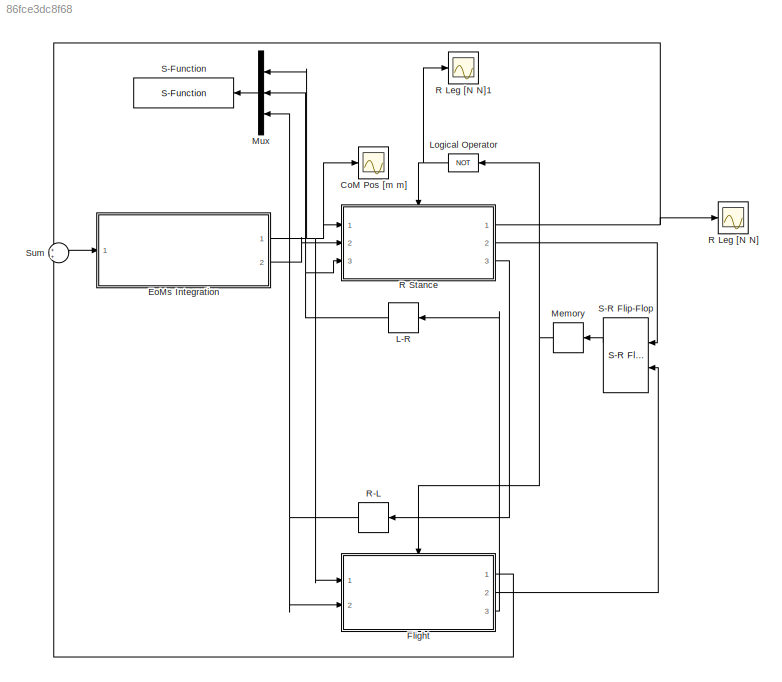
MODEL slx_86fce3dc8f68
KIND model
CONFIG AbsTol = auto
CONFIG FixedStep = auto
CONFIG InitFcn = SLIPrun_params
CONFIG MaxStep = 0.01
CONFIG MinStep = auto
CONFIG RelTol = 1e-3
CONFIG SampleTimeConstraint = Unconstrained
CONFIG Solver = ode45
CONFIG SolverMode = Auto
CONFIG SolverName = ode45
CONFIG StartTime = 0.0
CONFIG StopTime = 5
BLOCK [Scope] CoM Pos [m m]
  Floating = off
  NumInputPorts = 1
  Ports = [1]
  YMax = 1
  YMin = 0
  ZoomMode = yonly
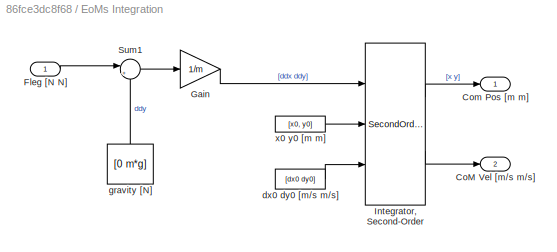
BLOCK [SubSystem] EoMs Integration
  Ports = [1, 2]
  RequestExecContextInheritance = off
BLOCK [Outport] EoMs Integration/CoM Vel [m//s m//s]
  IconDisplay = Port number
  Port = 2
BLOCK [Outport] EoMs Integration/Com Pos [m m]
  IconDisplay = Port number
BLOCK [Inport] EoMs Integration/Fleg [N N]
  IconDisplay = Port number
BLOCK [Gain] EoMs Integration/Gain
  Gain = 1/m
  OutDataTypeStr = Inherit: Inherit via internal rule
  ParamDataTypeStr = Inherit: Inherit via internal rule
  SaturateOnIntegerOverflow = off
BLOCK [SecondOrderIntegrator] EoMs Integration/Integrator, Second-Order
  ICSourceDXDT = external
  ICSourceX = external
  Ports = [3, 2]
BLOCK [Sum] EoMs Integration/Sum1
  IconShape = round
  InputSameDT = off
  Inputs = |+-
  OutDataTypeStr = Inherit: Inherit via internal rule
  Ports = [2, 1]
  SaturateOnIntegerOverflow = off
BLOCK [Constant] EoMs Integration/dx0 dy0 [m//s m//s]
  Value = [dx0 dy0]
BLOCK [Constant] EoMs Integration/gravity [N]
  Value = [0 m*g]
BLOCK [Constant] EoMs Integration/x0 y0 [m m]
  Value = [x0, y0]
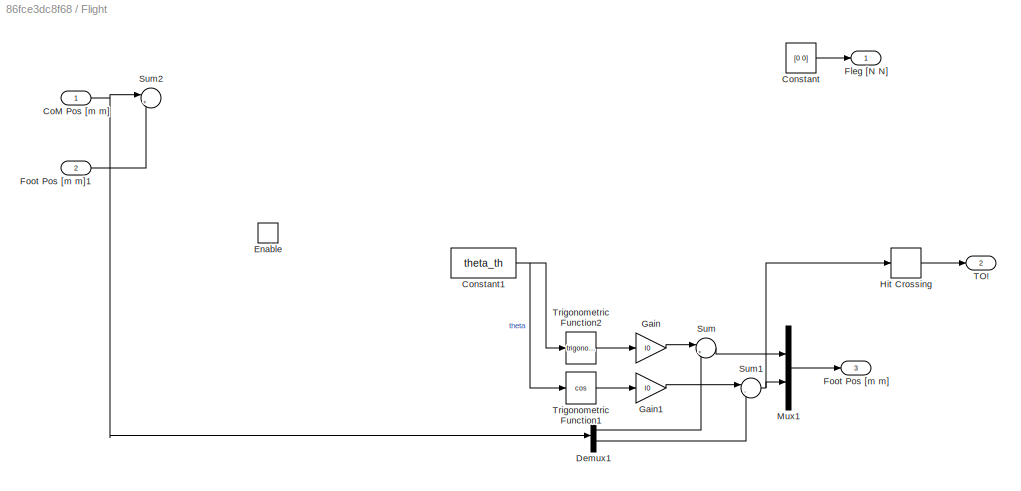
BLOCK [SubSystem] Flight
  Ports = [2, 3, 1]
  RequestExecContextInheritance = off
BLOCK [Inport] Flight/CoM Pos [m m]
  IconDisplay = Port number
BLOCK [Constant] Flight/Constant
  Value = [0 0]
BLOCK [Constant] Flight/Constant1
  Value = theta_th
BLOCK [Demux] Flight/Demux1
  DisplayOption = bar
  Outputs = 2
  Ports = [1, 2]
BLOCK [EnablePort] Flight/Enable
  Ports = []
  StatesWhenEnabling = reset
BLOCK [Outport] Flight/Fleg [N N]
  IconDisplay = Port number
  InitialOutput = [0 0]
  OutputWhenDisabled = reset
BLOCK [Outport] Flight/Foot Pos [m m]
  IconDisplay = Port number
  Port = 3
BLOCK [Inport] Flight/Foot Pos [m m]1
  IconDisplay = Port number
  Port = 2
BLOCK [Gain] Flight/Gain
  Gain = l0
  OutDataTypeStr = Inherit: Inherit via internal rule
  ParamDataTypeStr = Inherit: Inherit via internal rule
  SaturateOnIntegerOverflow = off
BLOCK [Gain] Flight/Gain1
  Gain = l0
  OutDataTypeStr = Inherit: Inherit via internal rule
  ParamDataTypeStr = Inherit: Inherit via internal rule
  SaturateOnIntegerOverflow = off
BLOCK [HitCross] Flight/Hit Crossing
  HitCrossingDirection = falling
  Ports = [1, 1]
BLOCK [Mux] Flight/Mux1
  DisplayOption = bar
  Inputs = 2
  Ports = [2, 1]
BLOCK [Sum] Flight/Sum
  IconShape = round
  InputSameDT = off
  Inputs = |++
  OutDataTypeStr = Inherit: Inherit via internal rule
  Ports = [2, 1]
  SaturateOnIntegerOverflow = off
BLOCK [Sum] Flight/Sum1
  IconShape = round
  InputSameDT = off
  Inputs = |-+
  OutDataTypeStr = Inherit: Inherit via internal rule
  Ports = [2, 1]
  SaturateOnIntegerOverflow = off
BLOCK [Sum] Flight/Sum2
  IconShape = round
  InputSameDT = off
  Inputs = |+-
  OutDataTypeStr = Inherit: Inherit via internal rule
  Ports = [2, 1]
  SaturateOnIntegerOverflow = off
BLOCK [Outport] Flight/TO!
  IconDisplay = Port number
  InitialOutput = [0]
  OutputWhenDisabled = reset
  Port = 2
BLOCK [Trigonometry] Flight/Trigonometric Function1
  Operator = cos
  Ports = [1, 1]
BLOCK [Trigonometry] Flight/Trigonometric Function2
  Ports = [1, 1]
BLOCK [Memory] L-R
BLOCK [Logic] Logical Operator
  AllPortsSameDT = off
  Operator = NOT
  OutDataTypeStr = boolean
  Ports = [1, 1]
BLOCK [Memory] Memory
BLOCK [Mux] Mux
  DisplayOption = bar
  Inputs = 3
  Ports = [3, 1]
BLOCK [Scope] R Leg [N N]
  Floating = off
  NumInputPorts = 1
  Ports = [1]
  SaveName = ScopeData2
  YMax = 2750
  YMin = -500
  ZoomMode = yonly
BLOCK [Scope] R Leg [N N]1
  Floating = off
  NumInputPorts = 1
  Ports = [1]
  SaveName = ScopeData3
  ZoomMode = yonly
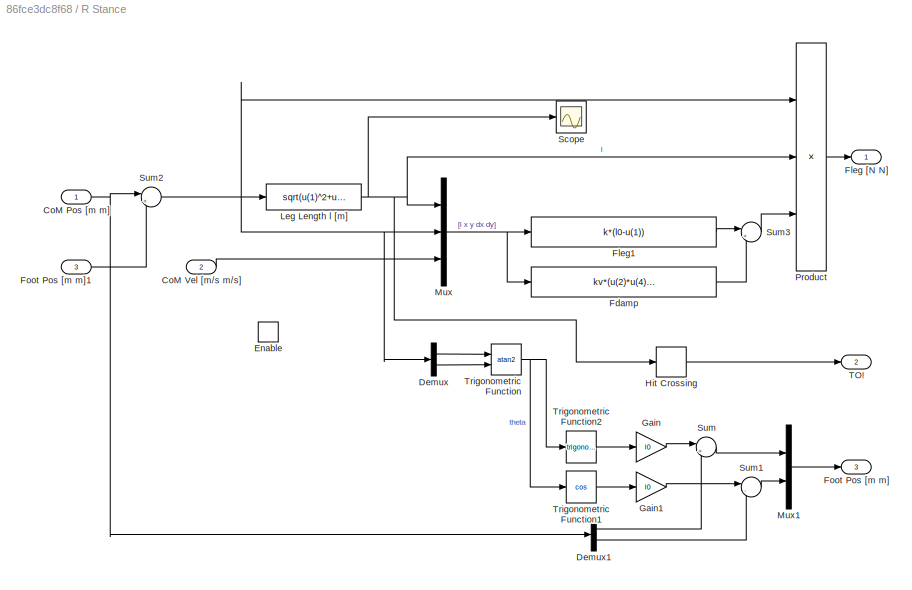
BLOCK [SubSystem] R Stance
  Ports = [3, 3, 1]
  RequestExecContextInheritance = off
BLOCK [Inport] R Stance/CoM Pos [m m]
  IconDisplay = Port number
BLOCK [Inport] R Stance/CoM Vel [m//s m//s]
  IconDisplay = Port number
  Port = 2
BLOCK [Demux] R Stance/Demux
  DisplayOption = bar
  Outputs = 2
  Ports = [1, 2]
BLOCK [Demux] R Stance/Demux1
  DisplayOption = bar
  Outputs = 2
  Ports = [1, 2]
BLOCK [EnablePort] R Stance/Enable
  Ports = []
  StatesWhenEnabling = reset
BLOCK [Fcn] R Stance/Fdamp
  Expr = kv*(u(2)*u(4)+u(3)*u(5))/u(1)
BLOCK [Outport] R Stance/Fleg [N N]
  IconDisplay = Port number
  InitialOutput = [0 0]
  OutputWhenDisabled = reset
BLOCK [Fcn] R Stance/Fleg1
  Expr = k*(l0-u(1))
BLOCK [Outport] R Stance/Foot Pos [m m]
  IconDisplay = Port number
  Port = 3
BLOCK [Inport] R Stance/Foot Pos [m m]1
  IconDisplay = Port number
  Port = 3
BLOCK [Gain] R Stance/Gain
  Gain = l0
  OutDataTypeStr = Inherit: Inherit via internal rule
  ParamDataTypeStr = Inherit: Inherit via internal rule
  SaturateOnIntegerOverflow = off
BLOCK [Gain] R Stance/Gain1
  Gain = l0
  OutDataTypeStr = Inherit: Inherit via internal rule
  ParamDataTypeStr = Inherit: Inherit via internal rule
  SaturateOnIntegerOverflow = off
BLOCK [HitCross] R Stance/Hit Crossing
  HitCrossingDirection = rising
  HitCrossingOffset = l0
  Ports = [1, 1]
BLOCK [Fcn] R Stance/Leg Length l [m]
  Expr = sqrt(u(1)^2+u(2)^2)
BLOCK [Mux] R Stance/Mux
  DisplayOption = bar
  Inputs = 3
  Ports = [3, 1]
BLOCK [Mux] R Stance/Mux1
  DisplayOption = bar
  Inputs = 2
  Ports = [2, 1]
BLOCK [Product] R Stance/Product
  InputSameDT = off
  Inputs = */*
  OutDataTypeStr = Inherit: Inherit via internal rule
  Ports = [3, 1]
  RndMeth = Floor
  SaturateOnIntegerOverflow = off
BLOCK [Scope] R Stance/Scope
  Floating = off
  NumInputPorts = 1
  Ports = [1]
  SaveName = ScopeData1
  YMax = 1.025
  YMin = 0.85
BLOCK [Sum] R Stance/Sum
  IconShape = round
  InputSameDT = off
  Inputs = |++
  OutDataTypeStr = Inherit: Inherit via internal rule
  Ports = [2, 1]
  SaturateOnIntegerOverflow = off
BLOCK [Sum] R Stance/Sum1
  IconShape = round
  InputSameDT = off
  Inputs = |-+
  OutDataTypeStr = Inherit: Inherit via internal rule
  Ports = [2, 1]
  SaturateOnIntegerOverflow = off
BLOCK [Sum] R Stance/Sum2
  IconShape = round
  InputSameDT = off
  Inputs = |+-
  OutDataTypeStr = Inherit: Inherit via internal rule
  Ports = [2, 1]
  SaturateOnIntegerOverflow = off
BLOCK [Sum] R Stance/Sum3
  IconShape = round
  InputSameDT = off
  Inputs = |+-
  OutDataTypeStr = Inherit: Inherit via internal rule
  Ports = [2, 1]
  SaturateOnIntegerOverflow = off
BLOCK [Outport] R Stance/TO!
  IconDisplay = Port number
  InitialOutput = [0]
  OutputWhenDisabled = reset
  Port = 2
BLOCK [Trigonometry] R Stance/Trigonometric Function
  Operator = atan2
  Ports = [2, 1]
BLOCK [Trigonometry] R Stance/Trigonometric Function1
  Operator = cos
  Ports = [1, 1]
BLOCK [Trigonometry] R Stance/Trigonometric Function2
  Ports = [1, 1]
BLOCK [Memory] R-L
BLOCK [S-Function] S-Function
  FunctionName = slip_animation2
  Parameters = 0.001
  Ports = [1]
BLOCK [Reference] S-R Flip-Flop  REF=simulink_extras/Flip Flops/S-R
Flip-Flop
  Ports = [2, 2]
  SourceBlock = simulink_extras/Flip Flops/S-R\nFlip-Flop
  SourceType = SRFlipFlop
  initial_condition = 0
BLOCK [Sum] Sum
  IconShape = round
  InputSameDT = off
  OutDataTypeStr = Inherit: Inherit via internal rule
  Ports = [2, 1]
  SaturateOnIntegerOverflow = off
LINE EoMs Integration/Fleg [N N]:1 -> EoMs Integration/Sum1:1
LINE EoMs Integration/Gain:1 -> EoMs Integration/Integrator, Second-Order:1
LINE EoMs Integration/Integrator, Second-Order:1 -> EoMs Integration/Com Pos [m m]:1
LINE EoMs Integration/Integrator, Second-Order:2 -> EoMs Integration/CoM Vel [m//s m//s]:1
LINE EoMs Integration/Sum1:1 -> EoMs Integration/Gain:1
LINE EoMs Integration/dx0 dy0 [m//s m//s]:1 -> EoMs Integration/Integrator, Second-Order:3
LINE EoMs Integration/gravity [N]:1 -> EoMs Integration/Sum1:2
LINE EoMs Integration/x0 y0 [m m]:1 -> EoMs Integration/Integrator, Second-Order:2
NET EoMs Integration:1 -> CoM Pos [m m]:1, Flight:1, Mux:1, R Stance:1
LINE EoMs Integration:2 -> R Stance:2
NET Flight/CoM Pos [m m]:1 -> Flight/Demux1:1, Flight/Sum2:1
NET Flight/Constant1:1 -> Flight/Trigonometric Function1:1, Flight/Trigonometric Function2:1
LINE Flight/Constant:1 -> Flight/Fleg [N N]:1
LINE Flight/Demux1:1 -> Flight/Sum:2
LINE Flight/Demux1:2 -> Flight/Sum1:2
LINE Flight/Foot Pos [m m]1:1 -> Flight/Sum2:2
LINE Flight/Gain1:1 -> Flight/Sum1:1
LINE Flight/Gain:1 -> Flight/Sum:1
LINE Flight/Hit Crossing:1 -> Flight/TO!:1
LINE Flight/Mux1:1 -> Flight/Foot Pos [m m]:1
NET Flight/Sum1:1 -> Flight/Hit Crossing:1, Flight/Mux1:2
LINE Flight/Sum:1 -> Flight/Mux1:1
LINE Flight/Trigonometric Function1:1 -> Flight/Gain1:1
LINE Flight/Trigonometric Function2:1 -> Flight/Gain:1
LINE Flight:1 -> Sum:2
LINE Flight:2 -> S-R Flip-Flop:2
LINE Flight:3 -> L-R:1
NET L-R:1 -> Mux:2, R Stance:3
NET Logical Operator:1 -> R Leg [N N]1:1, R Stance:enable
NET Memory:1 -> Flight:enable, Logical Operator:1
LINE Mux:1 -> S-Function:1
NET R Stance/CoM Pos [m m]:1 -> R Stance/Demux1:1, R Stance/Sum2:1
LINE R Stance/CoM Vel [m//s m//s]:1 -> R Stance/Mux:3
LINE R Stance/Demux1:1 -> R Stance/Sum:2
LINE R Stance/Demux1:2 -> R Stance/Sum1:2
LINE R Stance/Demux:1 -> R Stance/Trigonometric Function:1
LINE R Stance/Demux:2 -> R Stance/Trigonometric Function:2
LINE R Stance/Fdamp:1 -> R Stance/Sum3:2
LINE R Stance/Fleg1:1 -> R Stance/Sum3:1
LINE R Stance/Foot Pos [m m]1:1 -> R Stance/Sum2:2
LINE R Stance/Gain1:1 -> R Stance/Sum1:1
LINE R Stance/Gain:1 -> R Stance/Sum:1
LINE R Stance/Hit Crossing:1 -> R Stance/TO!:1
NET R Stance/Leg Length l [m]:1 -> R Stance/Hit Crossing:1, R Stance/Mux:1, R Stance/Product:2, R Stance/Scope:1
LINE R Stance/Mux1:1 -> R Stance/Foot Pos [m m]:1
NET R Stance/Mux:1 -> R Stance/Fdamp:1, R Stance/Fleg1:1
LINE R Stance/Product:1 -> R Stance/Fleg [N N]:1
LINE R Stance/Sum1:1 -> R Stance/Mux1:2
NET R Stance/Sum2:1 -> R Stance/Demux:1, R Stance/Leg Length l [m]:1, R Stance/Mux:2, R Stance/Product:1
LINE R Stance/Sum3:1 -> R Stance/Product:3
LINE R Stance/Sum:1 -> R Stance/Mux1:1
LINE R Stance/Trigonometric Function1:1 -> R Stance/Gain1:1
LINE R Stance/Trigonometric Function2:1 -> R Stance/Gain:1
NET R Stance/Trigonometric Function:1 -> R Stance/Trigonometric Function1:1, R Stance/Trigonometric Function2:1
NET R Stance:1 -> R Leg [N N]:1, Sum:1
LINE R Stance:2 -> S-R Flip-Flop:1
LINE R Stance:3 -> R-L:1
NET R-L:1 -> Flight:2, Mux:3
LINE S-R Flip-Flop:1 -> Memory:1
LINE Sum:1 -> EoMs Integration:1
note: NET lines group one-source signal fan-out (src -> all destinations, sorted); 1:1 wires keep LINE
